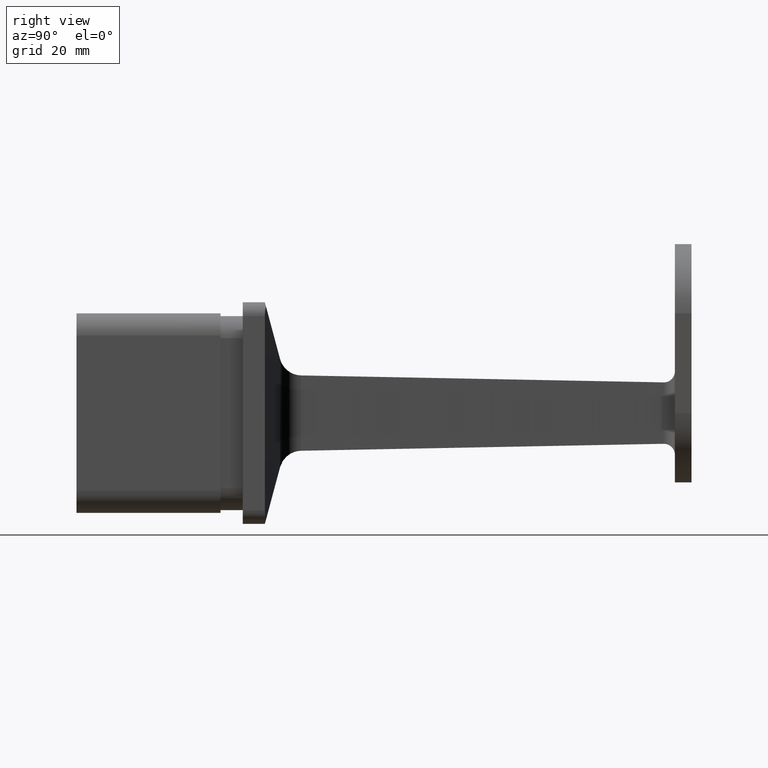
[diagram: clean part render]
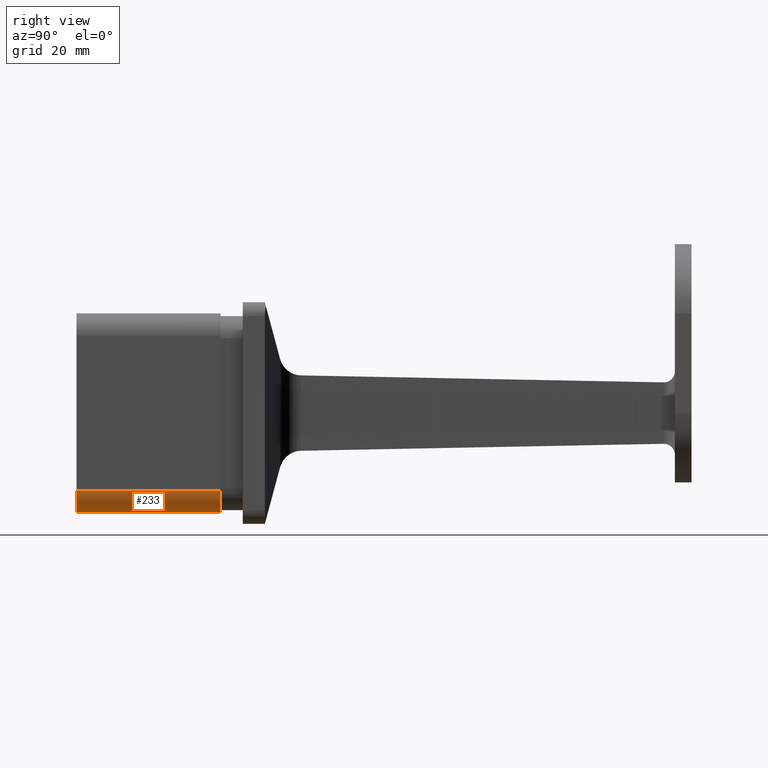
[diagram: same view with one face highlighted and labeled with its STEP entity id]
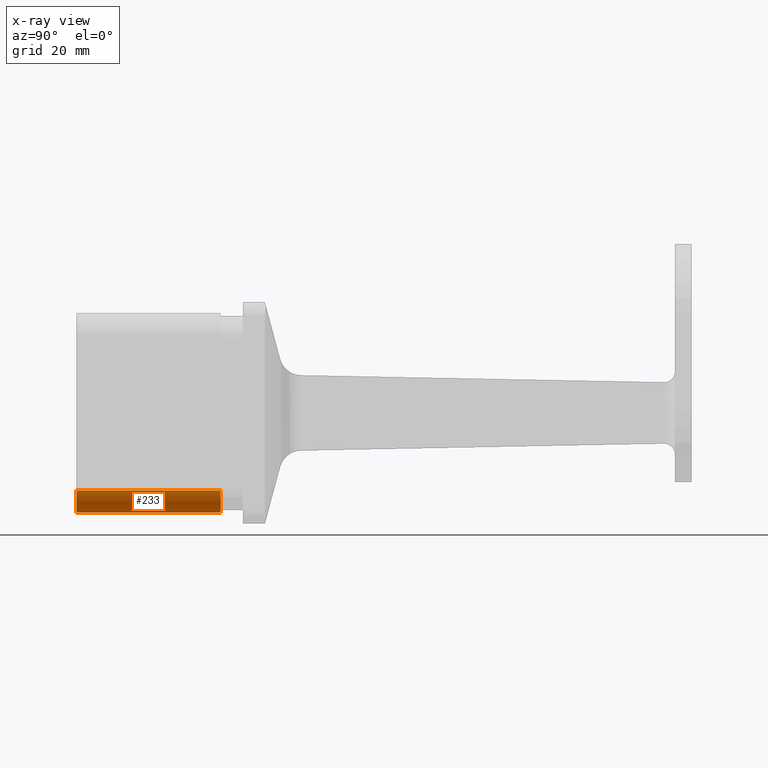
[diagram: x-ray of the same camera — body ghosted, the highlighted face saturated]
A machine part, right view. The second image highlights one B-rep face of the part: STEP entity #233.
The next image is the same camera in x-ray: the body ghosted, the highlighted face saturated — about 0% of this face is hidden behind the body in this view.
In plain terms, the highlighted cylindrical surface (edge-blend (fillet) strip) has radius 4 mm, axis along (0, 1, 0).
Its self-contained STEP definition (entity closure, byte-faithful):
#102 = DIRECTION ( 'NONE',  ( -0.000000000000000000, -1.000000000000000000, -0.000000000000000000 ) ) ;
#205 = VERTEX_POINT ( 'NONE', #11475 ) ;
#233 = ADVANCED_FACE ( 'NONE', ( #9805 ), #12752, .T. ) ;
#488 = CARTESIAN_POINT ( 'NONE',  ( 13.99999999999999467, -30.00000000000000000, -13.99999999999998401 ) ) ;
#542 = VERTEX_POINT ( 'NONE', #7129 ) ;
#718 = DIRECTION ( 'NONE',  ( 0.000000000000000000, 0.000000000000000000, 1.000000000000000000 ) ) ;
#1007 = ORIENTED_EDGE ( 'NONE', *, *, #10626, .F. ) ;
#1230 = VECTOR ( 'NONE', #12706, 1000.000000000000000 ) ;
#1549 = ORIENTED_EDGE ( 'NONE', *, *, #3763, .F. ) ;
#1855 = CARTESIAN_POINT ( 'NONE',  ( 13.99999999999999467, -4.000000000000000000, -13.99999999999998401 ) ) ;
#2556 = DIRECTION ( 'NONE',  ( 0.000000000000000000, -1.000000000000000000, 0.000000000000000000 ) ) ;
#2754 = LINE ( 'NONE', #11394, #1230 ) ;
#3763 = EDGE_CURVE ( 'NONE', #205, #4942, #9401, .T. ) ;
#4879 = AXIS2_PLACEMENT_3D ( 'NONE', #9156, #2556, #12414 ) ;
#4942 = VERTEX_POINT ( 'NONE', #13720 ) ;
#5457 = CARTESIAN_POINT ( 'NONE',  ( 13.99999999999999822, -4.000000000000000000, -17.99999999999999645 ) ) ;
#6410 = ORIENTED_EDGE ( 'NONE', *, *, #7504, .F. ) ;
#6636 = CARTESIAN_POINT ( 'NONE',  ( 13.99999999999999822, -30.00000000000000000, -17.99999999999999645 ) ) ;
#7129 = CARTESIAN_POINT ( 'NONE',  ( 17.99999999999999645, -4.000000000000000000, -13.99999999999998401 ) ) ;
#7504 = EDGE_CURVE ( 'NONE', #11266, #205, #13526, .T. ) ;
#7770 = VECTOR ( 'NONE', #102, 1000.000000000000000 ) ;
#8264 = DIRECTION ( 'NONE',  ( 0.000000000000000000, 1.000000000000000000, 0.000000000000000000 ) ) ;
#8735 = CIRCLE ( 'NONE', #10887, 4.000000000000000000 ) ;
#8904 = AXIS2_PLACEMENT_3D ( 'NONE', #488, #8264, #718 ) ;
#9156 = CARTESIAN_POINT ( 'NONE',  ( 13.99999999999999467, -30.00000000000000000, -13.99999999999998401 ) ) ;
#9401 = CIRCLE ( 'NONE', #4879, 4.000000000000000000 ) ;
#9629 = DIRECTION ( 'NONE',  ( -0.000000000000000000, 1.000000000000000000, -0.000000000000000000 ) ) ;
#9805 = FACE_OUTER_BOUND ( 'NONE', #12559, .T. ) ;
#10626 = EDGE_CURVE ( 'NONE', #542, #11266, #8735, .T. ) ;
#10887 = AXIS2_PLACEMENT_3D ( 'NONE', #1855, #9629, #12959 ) ;
#11266 = VERTEX_POINT ( 'NONE', #5457 ) ;
#11394 = CARTESIAN_POINT ( 'NONE',  ( 17.99999999999999645, -30.00000000000000000, -13.99999999999998401 ) ) ;
#11475 = CARTESIAN_POINT ( 'NONE',  ( 13.99999999999999822, -30.00000000000000000, -17.99999999999999645 ) ) ;
#11499 = ORIENTED_EDGE ( 'NONE', *, *, #13773, .F. ) ;
#12414 = DIRECTION ( 'NONE',  ( 0.000000000000000000, 0.000000000000000000, -1.000000000000000000 ) ) ;
#12559 = EDGE_LOOP ( 'NONE', ( #1549, #6410, #1007, #11499 ) ) ;
#12706 = DIRECTION ( 'NONE',  ( 0.000000000000000000, 1.000000000000000000, 0.000000000000000000 ) ) ;
#12752 = CYLINDRICAL_SURFACE ( 'NONE', #8904, 4.000000000000000000 ) ;
#12959 = DIRECTION ( 'NONE',  ( -2.602085213965210642E-15, 0.000000000000000000, -1.000000000000000000 ) ) ;
#13526 = LINE ( 'NONE', #6636, #7770 ) ;
#13720 = CARTESIAN_POINT ( 'NONE',  ( 17.99999999999999645, -30.00000000000000000, -13.99999999999998401 ) ) ;
#13773 = EDGE_CURVE ( 'NONE', #4942, #542, #2754, .T. ) ;